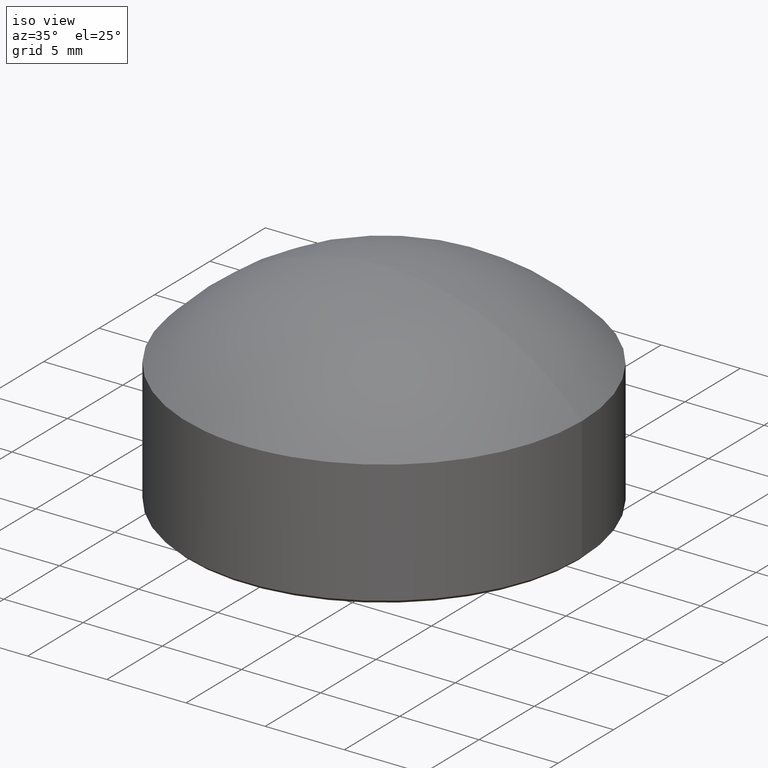
[diagram: clean part render]
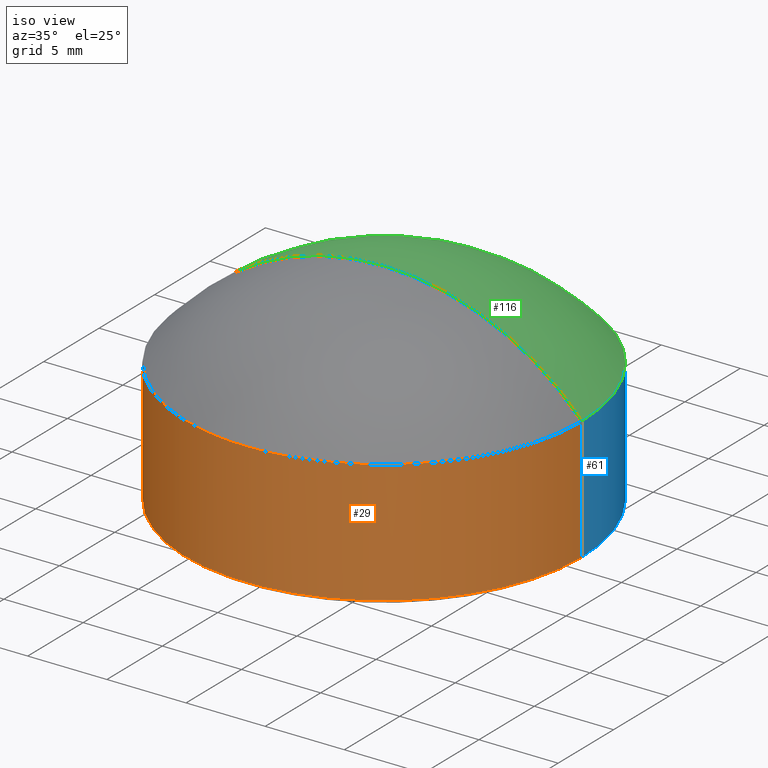
[diagram: same view with three faces highlighted in distinct colors, each labeled with its STEP entity id]
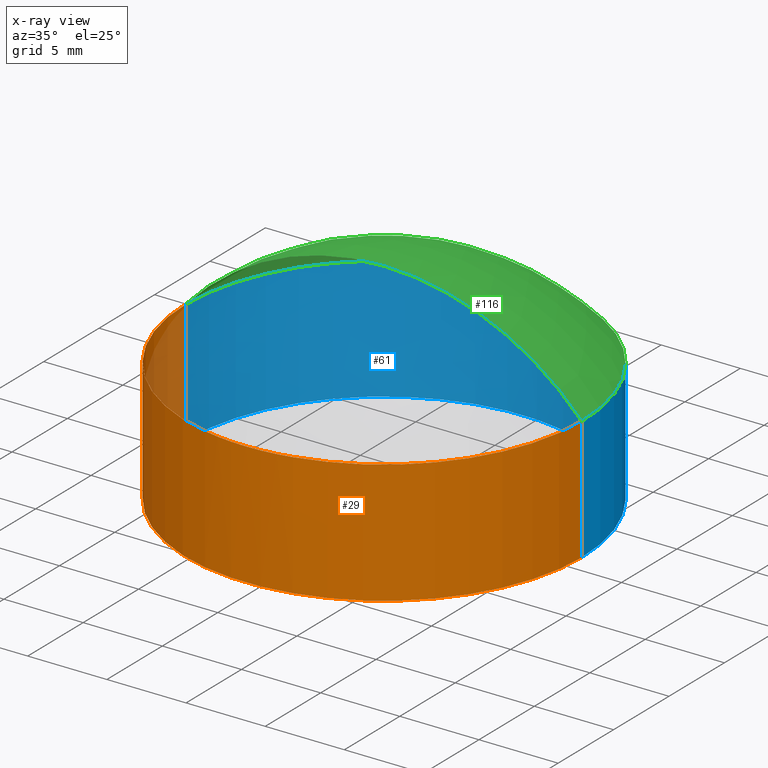
[diagram: x-ray of the same camera — body ghosted, the three highlighted faces saturated]
A machine part, iso view with three faces highlighted in distinct colors.
The next image is the same camera in x-ray (body ghosted, the three faces saturated) — at least one of them is partly hidden behind the body in this view.
Their STEP definitions:

[orange] entity #29 — the highlighted cylindrical surface (partial cylindrical patch) has radius 12.5 mm, axis along (-0, -0, -1).
#1 = CARTESIAN_POINT ( 'NONE',  ( -12.50000000000000000, 0.000000000000000000, 7.969999999999999751 ) ) ;
#9 = VERTEX_POINT ( 'NONE', #110 ) ;
#11 = ORIENTED_EDGE ( 'NONE', *, *, #167, .T. ) ;
#18 = VECTOR ( 'NONE', #72, 1000.000000000000000 ) ;
#19 = EDGE_CURVE ( 'NONE', #40, #170, #193, .T. ) ;
#28 = CARTESIAN_POINT ( 'NONE',  ( 12.50000000000000000, 1.530808498934191521E-15, 7.969999999999999751 ) ) ;
#29 = ADVANCED_FACE ( 'NONE', ( #114 ), #155, .T. ) ;
#40 = VERTEX_POINT ( 'NONE', #81 ) ;
#42 = DIRECTION ( 'NONE',  ( 0.000000000000000000, 0.000000000000000000, 1.000000000000000000 ) ) ;
#45 = DIRECTION ( 'NONE',  ( -0.000000000000000000, -0.000000000000000000, 1.000000000000000000 ) ) ;
#46 = ORIENTED_EDGE ( 'NONE', *, *, #207, .T. ) ;
#48 = CIRCLE ( 'NONE', #179, 12.50000000000000000 ) ;
#53 = ORIENTED_EDGE ( 'NONE', *, *, #19, .F. ) ;
#59 = CARTESIAN_POINT ( 'NONE',  ( 0.000000000000000000, 0.000000000000000000, 7.969999999999999751 ) ) ;
#62 = CARTESIAN_POINT ( 'NONE',  ( 12.50000000000000000, 1.530808498934191521E-15, 7.969999999999999751 ) ) ;
#72 = DIRECTION ( 'NONE',  ( -0.000000000000000000, -0.000000000000000000, -1.000000000000000000 ) ) ;
#80 = LINE ( 'NONE', #28, #84 ) ;
#81 = CARTESIAN_POINT ( 'NONE',  ( -12.50000000000000000, 0.000000000000000000, 7.969999999999999751 ) ) ;
#84 = VECTOR ( 'NONE', #171, 1000.000000000000000 ) ;
#95 = EDGE_CURVE ( 'NONE', #170, #214, #80, .T. ) ;
#97 = LINE ( 'NONE', #1, #18 ) ;
#102 = CARTESIAN_POINT ( 'NONE',  ( 12.50000000000000000, 1.530808498934191521E-15, 0.2000000000000074496 ) ) ;
#110 = CARTESIAN_POINT ( 'NONE',  ( -12.50000000000000000, 0.000000000000000000, 0.2000000000000074496 ) ) ;
#114 = FACE_OUTER_BOUND ( 'NONE', #196, .T. ) ;
#115 = DIRECTION ( 'NONE',  ( 1.000000000000000000, 0.000000000000000000, 0.000000000000000000 ) ) ;
#135 = DIRECTION ( 'NONE',  ( -0.000000000000000000, -0.000000000000000000, -1.000000000000000000 ) ) ;
#155 = CYLINDRICAL_SURFACE ( 'NONE', #174, 12.50000000000000000 ) ;
#156 = AXIS2_PLACEMENT_3D ( 'NONE', #199, #42, #201 ) ;
#167 = EDGE_CURVE ( 'NONE', #40, #9, #97, .T. ) ;
#170 = VERTEX_POINT ( 'NONE', #62 ) ;
#171 = DIRECTION ( 'NONE',  ( -0.000000000000000000, -0.000000000000000000, -1.000000000000000000 ) ) ;
#174 = AXIS2_PLACEMENT_3D ( 'NONE', #59, #135, #178 ) ;
#178 = DIRECTION ( 'NONE',  ( -1.000000000000000000, 0.000000000000000000, 0.000000000000000000 ) ) ;
#179 = AXIS2_PLACEMENT_3D ( 'NONE', #202, #45, #115 ) ;
#188 = ORIENTED_EDGE ( 'NONE', *, *, #95, .F. ) ;
#193 = CIRCLE ( 'NONE', #156, 12.50000000000000000 ) ;
#196 = EDGE_LOOP ( 'NONE', ( #188, #53, #11, #46 ) ) ;
#199 = CARTESIAN_POINT ( 'NONE',  ( 0.000000000000000000, 0.000000000000000000, 7.969999999999999751 ) ) ;
#201 = DIRECTION ( 'NONE',  ( 1.000000000000000000, 0.000000000000000000, 0.000000000000000000 ) ) ;
#202 = CARTESIAN_POINT ( 'NONE',  ( 0.000000000000000000, 0.000000000000000000, 0.2000000000000074496 ) ) ;
#207 = EDGE_CURVE ( 'NONE', #9, #214, #48, .T. ) ;
#214 = VERTEX_POINT ( 'NONE', #102 ) ;

[blue] entity #61 — the highlighted cylindrical surface (partial cylindrical patch) has radius 12.5 mm, axis along (-0, -0, -1).
#1 = CARTESIAN_POINT ( 'NONE',  ( -12.50000000000000000, 0.000000000000000000, 7.969999999999999751 ) ) ;
#9 = VERTEX_POINT ( 'NONE', #110 ) ;
#16 = CARTESIAN_POINT ( 'NONE',  ( 0.000000000000000000, 0.000000000000000000, 7.969999999999999751 ) ) ;
#18 = VECTOR ( 'NONE', #72, 1000.000000000000000 ) ;
#28 = CARTESIAN_POINT ( 'NONE',  ( 12.50000000000000000, 1.530808498934191521E-15, 7.969999999999999751 ) ) ;
#36 = FACE_OUTER_BOUND ( 'NONE', #154, .T. ) ;
#37 = AXIS2_PLACEMENT_3D ( 'NONE', #16, #166, #138 ) ;
#40 = VERTEX_POINT ( 'NONE', #81 ) ;
#41 = DIRECTION ( 'NONE',  ( 1.000000000000000000, 0.000000000000000000, 0.000000000000000000 ) ) ;
#51 = AXIS2_PLACEMENT_3D ( 'NONE', #200, #175, #41 ) ;
#57 = ORIENTED_EDGE ( 'NONE', *, *, #83, .T. ) ;
#61 = ADVANCED_FACE ( 'NONE', ( #36 ), #182, .T. ) ;
#62 = CARTESIAN_POINT ( 'NONE',  ( 12.50000000000000000, 1.530808498934191521E-15, 7.969999999999999751 ) ) ;
#64 = CARTESIAN_POINT ( 'NONE',  ( 0.000000000000000000, 0.000000000000000000, 7.969999999999999751 ) ) ;
#72 = DIRECTION ( 'NONE',  ( -0.000000000000000000, -0.000000000000000000, -1.000000000000000000 ) ) ;
#80 = LINE ( 'NONE', #28, #84 ) ;
#81 = CARTESIAN_POINT ( 'NONE',  ( -12.50000000000000000, 0.000000000000000000, 7.969999999999999751 ) ) ;
#83 = EDGE_CURVE ( 'NONE', #214, #9, #205, .T. ) ;
#84 = VECTOR ( 'NONE', #171, 1000.000000000000000 ) ;
#89 = CIRCLE ( 'NONE', #37, 12.50000000000000000 ) ;
#90 = ORIENTED_EDGE ( 'NONE', *, *, #95, .T. ) ;
#95 = EDGE_CURVE ( 'NONE', #170, #214, #80, .T. ) ;
#96 = ORIENTED_EDGE ( 'NONE', *, *, #113, .F. ) ;
#97 = LINE ( 'NONE', #1, #18 ) ;
#102 = CARTESIAN_POINT ( 'NONE',  ( 12.50000000000000000, 1.530808498934191521E-15, 0.2000000000000074496 ) ) ;
#105 = DIRECTION ( 'NONE',  ( -0.000000000000000000, -0.000000000000000000, -1.000000000000000000 ) ) ;
#110 = CARTESIAN_POINT ( 'NONE',  ( -12.50000000000000000, 0.000000000000000000, 0.2000000000000074496 ) ) ;
#113 = EDGE_CURVE ( 'NONE', #170, #40, #89, .T. ) ;
#138 = DIRECTION ( 'NONE',  ( 1.000000000000000000, 0.000000000000000000, 0.000000000000000000 ) ) ;
#153 = ORIENTED_EDGE ( 'NONE', *, *, #167, .F. ) ;
#154 = EDGE_LOOP ( 'NONE', ( #96, #90, #57, #153 ) ) ;
#164 = AXIS2_PLACEMENT_3D ( 'NONE', #64, #105, #180 ) ;
#166 = DIRECTION ( 'NONE',  ( 0.000000000000000000, 0.000000000000000000, 1.000000000000000000 ) ) ;
#167 = EDGE_CURVE ( 'NONE', #40, #9, #97, .T. ) ;
#170 = VERTEX_POINT ( 'NONE', #62 ) ;
#171 = DIRECTION ( 'NONE',  ( -0.000000000000000000, -0.000000000000000000, -1.000000000000000000 ) ) ;
#175 = DIRECTION ( 'NONE',  ( -0.000000000000000000, -0.000000000000000000, 1.000000000000000000 ) ) ;
#180 = DIRECTION ( 'NONE',  ( -1.000000000000000000, 0.000000000000000000, 0.000000000000000000 ) ) ;
#182 = CYLINDRICAL_SURFACE ( 'NONE', #164, 12.50000000000000000 ) ;
#200 = CARTESIAN_POINT ( 'NONE',  ( 0.000000000000000000, 0.000000000000000000, 0.2000000000000074496 ) ) ;
#205 = CIRCLE ( 'NONE', #51, 12.50000000000000000 ) ;
#214 = VERTEX_POINT ( 'NONE', #102 ) ;

[green] entity #116 — the highlighted spherical surface has radius 16.8925 mm.
#13 = CARTESIAN_POINT ( 'NONE',  ( 0.000000000000000000, 0.000000000000000000, -3.392486437613020378 ) ) ;
#14 = SPHERICAL_SURFACE ( 'NONE', #117, 16.89248643761301949 ) ;
#16 = CARTESIAN_POINT ( 'NONE',  ( 0.000000000000000000, 0.000000000000000000, 7.969999999999999751 ) ) ;
#27 = AXIS2_PLACEMENT_3D ( 'NONE', #13, #76, #134 ) ;
#31 = DIRECTION ( 'NONE',  ( -1.224646799147353207E-16, -1.000000000000000000, -0.000000000000000000 ) ) ;
#37 = AXIS2_PLACEMENT_3D ( 'NONE', #16, #166, #138 ) ;
#38 = ORIENTED_EDGE ( 'NONE', *, *, #147, .T. ) ;
#40 = VERTEX_POINT ( 'NONE', #81 ) ;
#43 = DIRECTION ( 'NONE',  ( -1.000000000000000000, 0.000000000000000000, 0.000000000000000000 ) ) ;
#44 = ORIENTED_EDGE ( 'NONE', *, *, #108, .F. ) ;
#49 = CARTESIAN_POINT ( 'NONE',  ( 0.000000000000000000, 0.000000000000000000, -3.392486437613020378 ) ) ;
#52 = CIRCLE ( 'NONE', #69, 16.89248643761301949 ) ;
#60 = DIRECTION ( 'NONE',  ( 1.000000000000000000, -1.224646799147352961E-16, 0.000000000000000000 ) ) ;
#62 = CARTESIAN_POINT ( 'NONE',  ( 12.50000000000000000, 1.530808498934191521E-15, 7.969999999999999751 ) ) ;
#69 = AXIS2_PLACEMENT_3D ( 'NONE', #169, #31, #60 ) ;
#71 = ORIENTED_EDGE ( 'NONE', *, *, #113, .T. ) ;
#73 = EDGE_LOOP ( 'NONE', ( #44, #71, #38 ) ) ;
#74 = CARTESIAN_POINT ( 'NONE',  ( -1.034366472273142859E-15, 0.000000000000000000, 13.50000000000000000 ) ) ;
#76 = DIRECTION ( 'NONE',  ( 0.000000000000000000, 1.000000000000000000, 0.000000000000000000 ) ) ;
#77 = CIRCLE ( 'NONE', #27, 16.89248643761301949 ) ;
#81 = CARTESIAN_POINT ( 'NONE',  ( -12.50000000000000000, 0.000000000000000000, 7.969999999999999751 ) ) ;
#89 = CIRCLE ( 'NONE', #37, 12.50000000000000000 ) ;
#108 = EDGE_CURVE ( 'NONE', #170, #184, #52, .T. ) ;
#111 = FACE_OUTER_BOUND ( 'NONE', #73, .T. ) ;
#113 = EDGE_CURVE ( 'NONE', #170, #40, #89, .T. ) ;
#116 = ADVANCED_FACE ( 'NONE', ( #111 ), #14, .T. ) ;
#117 = AXIS2_PLACEMENT_3D ( 'NONE', #49, #213, #43 ) ;
#134 = DIRECTION ( 'NONE',  ( 0.000000000000000000, 0.000000000000000000, 1.000000000000000000 ) ) ;
#138 = DIRECTION ( 'NONE',  ( 1.000000000000000000, 0.000000000000000000, 0.000000000000000000 ) ) ;
#147 = EDGE_CURVE ( 'NONE', #40, #184, #77, .T. ) ;
#166 = DIRECTION ( 'NONE',  ( 0.000000000000000000, 0.000000000000000000, 1.000000000000000000 ) ) ;
#169 = CARTESIAN_POINT ( 'NONE',  ( 0.000000000000000000, 0.000000000000000000, -3.392486437613020378 ) ) ;
#170 = VERTEX_POINT ( 'NONE', #62 ) ;
#184 = VERTEX_POINT ( 'NONE', #74 ) ;
#213 = DIRECTION ( 'NONE',  ( -0.000000000000000000, -1.000000000000000000, 0.000000000000000000 ) ) ;